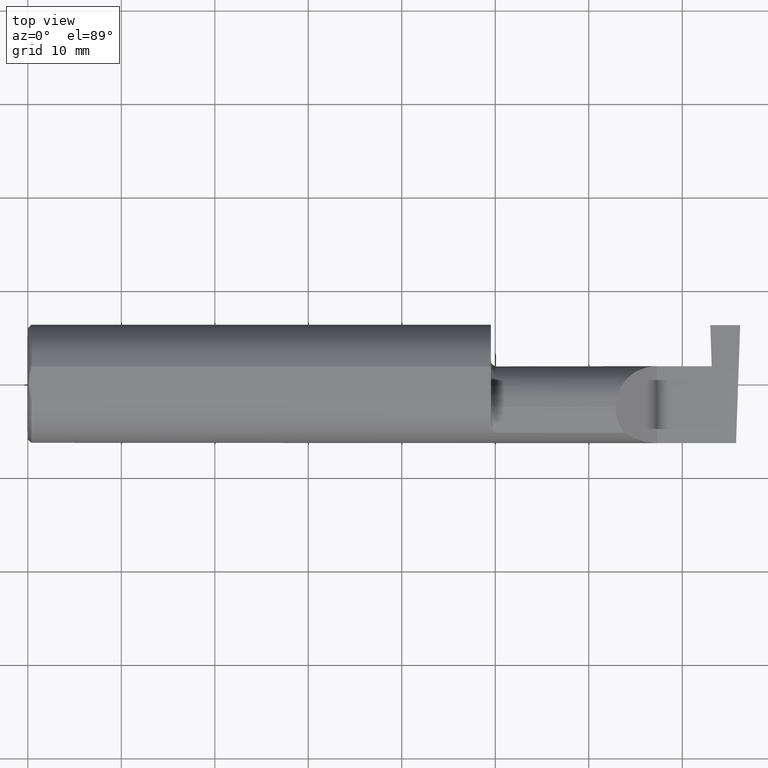
[diagram: clean part render]
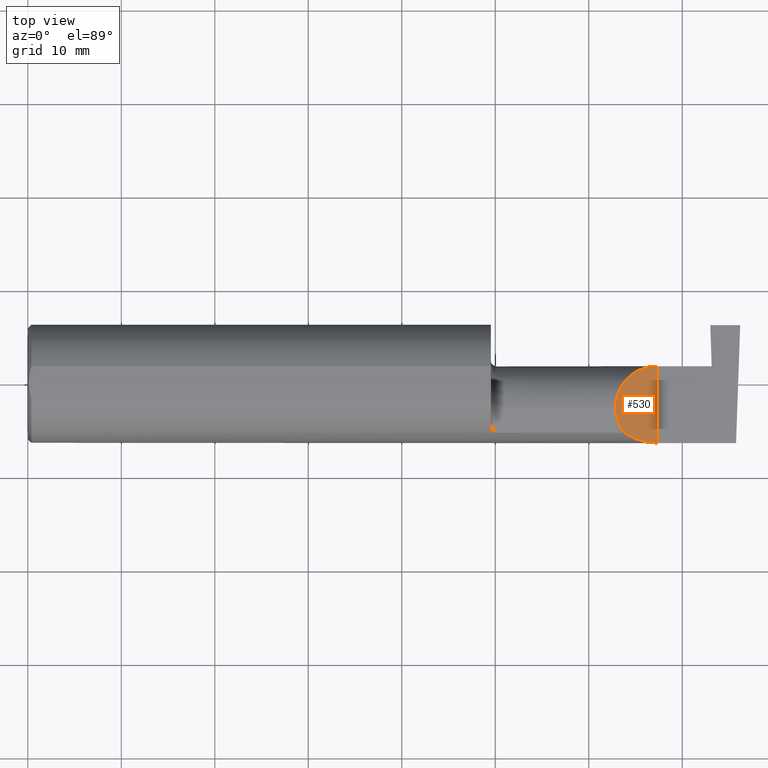
[diagram: same view with one face highlighted and labeled with its STEP entity id]
A machine part, top view. The second image highlights one B-rep face of the part: STEP entity #530.
In plain terms, the highlighted planar face has unit normal (-0.7071, 0, -0.7071).
Its self-contained STEP definition (entity closure, byte-faithful):
#25 = CARTESIAN_POINT ( 'NONE',  ( 2.475000000000001421, -0.1008499999999999674, 0.1749999999999999889 ) ) ;
#78 =( BOUNDED_CURVE ( )  B_SPLINE_CURVE ( 3, ( #267, #735, #449, #686 ),
 .UNSPECIFIED., .F., .T. ) 
 B_SPLINE_CURVE_WITH_KNOTS ( ( 4, 4 ),
 ( 4.712388980384689674, 5.298966915116346321 ),
 .UNSPECIFIED. ) 
 CURVE ( )  GEOMETRIC_REPRESENTATION_ITEM ( )  RATIONAL_B_SPLINE_CURVE ( ( 1.000000000000000000, 0.9715321379117538569, 0.9715321379117538569, 1.000000000000000000 ) ) 
 REPRESENTATION_ITEM ( '' )  );
#151 = LINE ( 'NONE', #208, #511 ) ;
#160 =( BOUNDED_CURVE ( )  B_SPLINE_CURVE ( 3, ( #688, #531, #349, #281 ),
 .UNSPECIFIED., .F., .T. ) 
 B_SPLINE_CURVE_WITH_KNOTS ( ( 4, 4 ),
 ( 5.623622464215678463, 6.283185307179586232 ),
 .UNSPECIFIED. ) 
 CURVE ( )  GEOMETRIC_REPRESENTATION_ITEM ( )  RATIONAL_B_SPLINE_CURVE ( ( 1.000000000000000000, 0.9640754331822828371, 0.9640754331822828371, 1.000000000000000000 ) ) 
 REPRESENTATION_ITEM ( '' )  );
#204 = CARTESIAN_POINT ( 'NONE',  ( 2.475000000000001421, -0.1008499999999999674, 0.1749999999999999889 ) ) ;
#208 = CARTESIAN_POINT ( 'NONE',  ( 2.650000000000000355, -0.2500000000000000555, 4.286263797015727350E-17 ) ) ;
#242 = EDGE_CURVE ( 'NONE', #590, #321, #78, .T. ) ;
#258 = VERTEX_POINT ( 'NONE', #204 ) ;
#267 = CARTESIAN_POINT ( 'NONE',  ( 2.650000000000000355, -0.2498499999999999610, 4.286263797015727350E-17 ) ) ;
#281 = CARTESIAN_POINT ( 'NONE',  ( 2.475000000000001421, -0.1008499999999999674, 0.1749999999999999889 ) ) ;
#301 = CARTESIAN_POINT ( 'NONE',  ( 2.650000000000000355, -0.2500000000000000555, 4.286263797015727350E-17 ) ) ;
#311 = FACE_OUTER_BOUND ( 'NONE', #678, .T. ) ;
#321 = VERTEX_POINT ( 'NONE', #750 ) ;
#339 = CARTESIAN_POINT ( 'NONE',  ( 2.547487373415292744, 0.07414999999999996594, 0.1025126265847083745 ) ) ;
#342 = EDGE_CURVE ( 'NONE', #590, #408, #151, .T. ) ;
#343 = CARTESIAN_POINT ( 'NONE',  ( 2.650000000000000355, 0.07414999999999997982, 4.286263797015727350E-17 ) ) ;
#349 = CARTESIAN_POINT ( 'NONE',  ( 2.475000000000001421, -0.1400387324517231857, 0.1750000000000000167 ) ) ;
#370 = AXIS2_PLACEMENT_3D ( 'NONE', #301, #713, #418 ) ;
#383 = CARTESIAN_POINT ( 'NONE',  ( 2.650000000000000355, -0.2498499999999999610, 4.286263797015727350E-17 ) ) ;
#385 = ORIENTED_EDGE ( 'NONE', *, *, #242, .F. ) ;
#389 =( BOUNDED_CURVE ( )  B_SPLINE_CURVE ( 3, ( #25, #692, #339, #343 ),
 .UNSPECIFIED., .F., .T. ) 
 B_SPLINE_CURVE_WITH_KNOTS ( ( 4, 4 ),
 ( 0.000000000000000000, 1.570796326794896558 ),
 .UNSPECIFIED. ) 
 CURVE ( )  GEOMETRIC_REPRESENTATION_ITEM ( )  RATIONAL_B_SPLINE_CURVE ( ( 1.000000000000000000, 0.8047378541243649375, 0.8047378541243649375, 1.000000000000000000 ) ) 
 REPRESENTATION_ITEM ( '' )  );
#408 = VERTEX_POINT ( 'NONE', #589 ) ;
#418 = DIRECTION ( 'NONE',  ( -0.7071067811865454633, 0.000000000000000000, 0.7071067811865495711 ) ) ;
#449 = CARTESIAN_POINT ( 'NONE',  ( 2.552984868485333347, -0.2355204011147992438, 0.09701513151466735485 ) ) ;
#453 = ORIENTED_EDGE ( 'NONE', *, *, #701, .F. ) ;
#477 = PLANE ( 'NONE',  #370 ) ;
#511 = VECTOR ( 'NONE', #540, 39.37007874015748143 ) ;
#530 = ADVANCED_FACE ( 'NONE', ( #311 ), #477, .F. ) ;
#531 = CARTESIAN_POINT ( 'NONE',  ( 2.487690731615568307, -0.1771157075472510889, 0.1623092683844330197 ) ) ;
#540 = DIRECTION ( 'NONE',  ( -0.000000000000000000, 1.000000000000000000, -0.000000000000000000 ) ) ;
#589 = CARTESIAN_POINT ( 'NONE',  ( 2.650000000000000355, 0.07414999999999997982, 4.286263797015727350E-17 ) ) ;
#590 = VERTEX_POINT ( 'NONE', #383 ) ;
#601 = ORIENTED_EDGE ( 'NONE', *, *, #680, .F. ) ;
#678 = EDGE_LOOP ( 'NONE', ( #453, #385, #690, #601 ) ) ;
#680 = EDGE_CURVE ( 'NONE', #258, #408, #389, .T. ) ;
#686 = CARTESIAN_POINT ( 'NONE',  ( 2.511704467739034552, -0.2080850024789292485, 0.1382955322609664139 ) ) ;
#688 = CARTESIAN_POINT ( 'NONE',  ( 2.511704467739034552, -0.2080850024789292485, 0.1382955322609664139 ) ) ;
#690 = ORIENTED_EDGE ( 'NONE', *, *, #342, .T. ) ;
#692 = CARTESIAN_POINT ( 'NONE',  ( 2.475000000000001421, 0.001662626584708371512, 0.1749999999999999889 ) ) ;
#701 = EDGE_CURVE ( 'NONE', #321, #258, #160, .T. ) ;
#713 = DIRECTION ( 'NONE',  ( -0.7071067811865495711, 0.000000000000000000, -0.7071067811865454633 ) ) ;
#735 = CARTESIAN_POINT ( 'NONE',  ( 2.600434159100403875, -0.2498499999999999055, 0.04956584089959691769 ) ) ;
#750 = CARTESIAN_POINT ( 'NONE',  ( 2.511704467739034552, -0.2080850024789292485, 0.1382955322609664139 ) ) ;